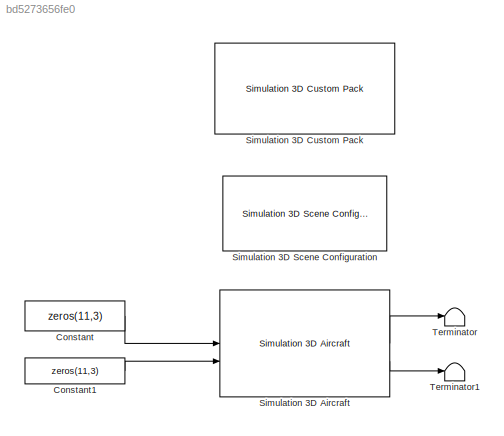
MODEL slx_bd5273656fe0
KIND model
CONFIG AbsTol = auto
CONFIG EnableMultiTasking = off
CONFIG FixedStep = auto
CONFIG MaxStep = auto
CONFIG MinStep = auto
CONFIG RelTol = 1e-3
CONFIG SampleTimeConstraint = Unconstrained
CONFIG SolverName = VariableStepAuto
CONFIG StartTime = 0.0
CONFIG StopTime = inf
BLOCK [Constant] Constant
  Value = zeros(11,3)
BLOCK [Constant] Constant1
  Value = zeros(11,3)
BLOCK [Reference] Simulation 3D Aircraft  REF=aerolibsim3d/Simulation 3D Aircraft
  Priority = -1
  SourceBlock = aerolibsim3d/Simulation 3D Aircraft
  SourceType = Simulation 3D Aircraft
BLOCK [Reference] Simulation 3D Custom Pack  REF=aerolibsim3d/Simulation 3D Custom Pack
  Commented = on
  SourceBlock = aerolibsim3d/Simulation 3D Custom Pack
  SourceType = Simulation 3D Custom Pack
BLOCK [Reference] Simulation 3D Scene Configuration  REF=sim3dlib/Simulation 3D Scene Configuration
  LibrarySourceBlock = aerolibsim3d/Simulation 3D Scene Configuration
  Priority = 0
  SourceBlock = sim3dlib/Simulation 3D Scene Configuration
  SourceType = Simulation 3D Scene Configuration
BLOCK [Terminator] Terminator
BLOCK [Terminator] Terminator1
LINE Constant1:1 -> Simulation 3D Aircraft:2
LINE Constant:1 -> Simulation 3D Aircraft:1
LINE Simulation 3D Aircraft:1 -> Terminator:1
LINE Simulation 3D Aircraft:2 -> Terminator1:1
